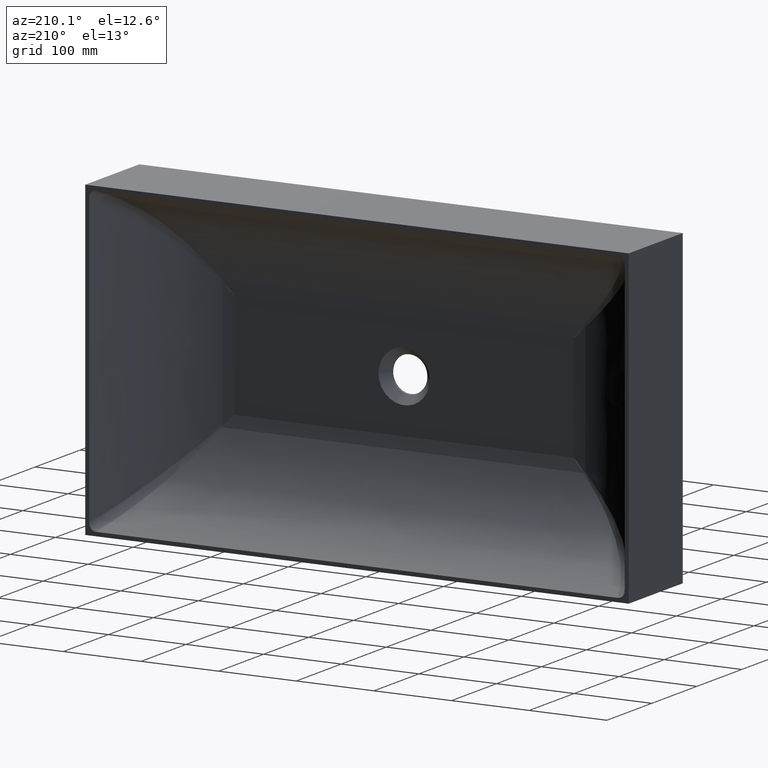
[diagram: clean part render]
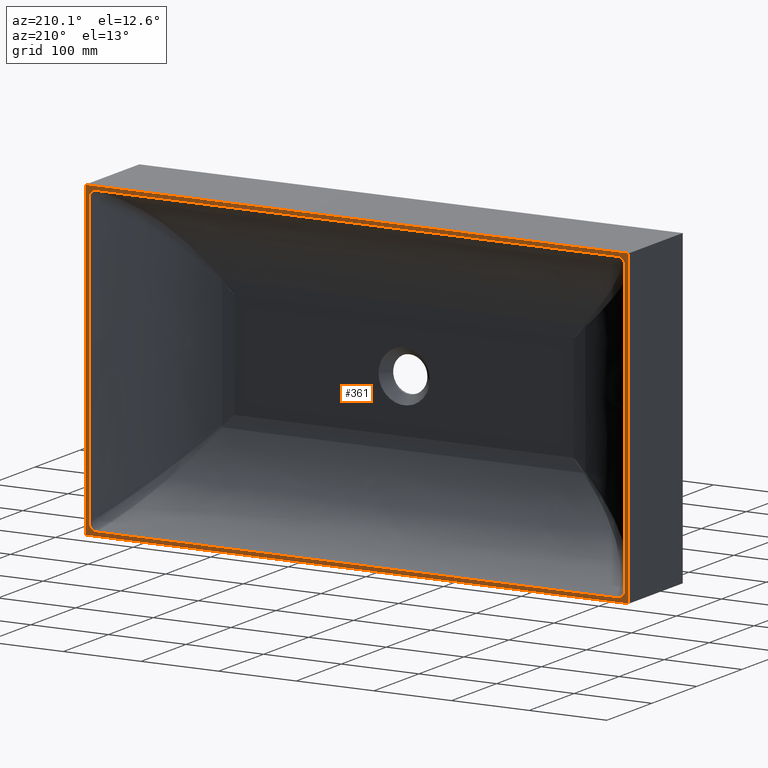
[diagram: same view with one face highlighted and labeled with its STEP entity id]
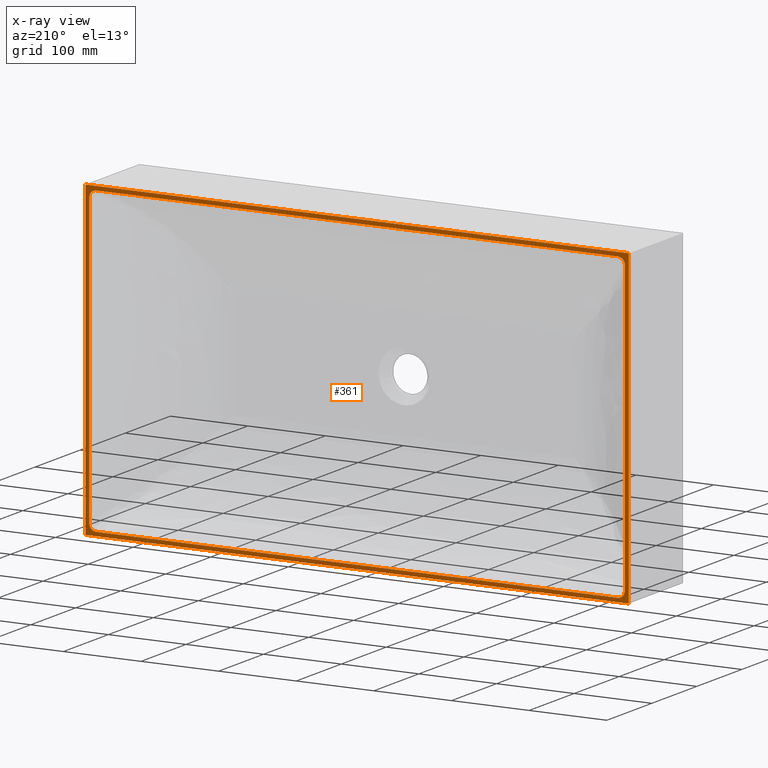
[diagram: x-ray of the same camera — body ghosted, the highlighted face saturated]
A machine part, auxiliary view. The second image highlights one B-rep face of the part: STEP entity #361.
The next image is the same camera in x-ray: the body ghosted, the highlighted face saturated — about 0% of this face is hidden behind the body in this view.
In plain terms, the highlighted planar face has unit normal (0, 1, 0).
Its self-contained STEP definition (entity closure, byte-faithful):
#1 = CARTESIAN_POINT ( 'NONE',  ( -344.5395764374862900, 119.9999999999992800, 188.6496034135135200 ) ) ;
#10 = CARTESIAN_POINT ( 'NONE',  ( 343.8305096038049000, 119.9999999999992300, 190.3507536799460500 ) ) ;
#32 = ORIENTED_EDGE ( 'NONE', *, *, #2656, .T. ) ;
#33 = CARTESIAN_POINT ( 'NONE',  ( -342.7596473688959100, 119.9999999999992800, -191.8703264448121200 ) ) ;
#53 = CARTESIAN_POINT ( 'NONE',  ( 335.5790577006914100, 119.9922663913401900, 194.9671193596227600 ) ) ;
#62 = CARTESIAN_POINT ( 'NONE',  ( 344.9671193020282700, 119.9922664137188900, -185.5790577006093300 ) ) ;
#73 = VERTEX_POINT ( 'NONE', #1940 ) ;
#81 = CARTESIAN_POINT ( 'NONE',  ( 335.5790577006914100, 119.9922663913401900, 194.9671193596227600 ) ) ;
#111 = CARTESIAN_POINT ( 'NONE',  ( 0.0000000000000000000, 119.9999999999992200, 194.9470410668077100 ) ) ;
#128 = CARTESIAN_POINT ( 'NONE',  ( -338.0341791756490600, 119.9999999999992800, 194.7123349679627900 ) ) ;
#136 = CARTESIAN_POINT ( 'NONE',  ( 0.0000000000000000000, 119.9999999999992200, -194.9470410668095000 ) ) ;
#154 = CARTESIAN_POINT ( 'NONE',  ( 344.9834004611630000, 119.9999999999991800, 186.2025042077122000 ) ) ;
#162 = CARTESIAN_POINT ( 'NONE',  ( 343.1469752501623100, 119.9999999999992300, -191.4138618519664600 ) ) ;
#167 = CARTESIAN_POINT ( 'NONE',  ( 344.9671193596302000, 119.9922663913387000, 185.5790577006874900 ) ) ;
#222 = CARTESIAN_POINT ( 'NONE',  ( -344.9834015516176500, 119.9999999999992000, 186.2034410130632700 ) ) ;
#238 = ORIENTED_EDGE ( 'NONE', *, *, #1511, .T. ) ;
#246 = CARTESIAN_POINT ( 'NONE',  ( 350.0000000000014200, 119.9999999999992200, 199.9999999999992900 ) ) ;
#292 = CARTESIAN_POINT ( 'NONE',  ( 340.6302678640722100, 119.9999999999992600, 193.6523266788829000 ) ) ;
#307 = CARTESIAN_POINT ( 'NONE',  ( -343.8305096037987600, 119.9999999999992300, -190.3507536799509700 ) ) ;
#309 = B_SPLINE_CURVE_WITH_KNOTS ( 'NONE', 3,
 ( #1616, #2623, #2485, #1000, #2287, #1266, #1016, #1897, #2590, #1705, #307, #2997, #561, #33, #989, #2207, #2572, #2866, #3325, #733, #2003, #1090, #663, #3234, #2011, #653, #2790, #793, #1961, #1119 ),
 .UNSPECIFIED., .F., .F.,
 ( 4, 2, 2, 2, 2, 2, 2, 2, 2, 2, 2, 2, 2, 2, 4 ),
 ( 5.329070518200751400E-015, 0.0009257488335347082700, 0.001851497667064087500, 0.002777246500593467000, 0.003702995334122845900, 0.005554493001181604900, 0.006480241834710974300, 0.007405990668240343600, 0.009257488335299142100, 0.01018323716882860900, 0.01110898600235807700, 0.01203473483588754500, 0.01296048366941701300, 0.01388623250294648100, 0.01481198133647595000 ),
 .UNSPECIFIED. ) ;
#310 = CARTESIAN_POINT ( 'NONE',  ( 338.0341791756457600, 119.9999999999992900, -194.7123349679658900 ) ) ;
#315 = CARTESIAN_POINT ( 'NONE',  ( -339.8004443079717600, 119.9999999999992300, 194.1085729462955400 ) ) ;
#330 = CARTESIAN_POINT ( 'NONE',  ( 344.9309921341780400, 119.9999999999991800, 186.8191311858080900 ) ) ;
#335 = CARTESIAN_POINT ( 'NONE',  ( -349.9999999999996600, 119.9999999999992600, -1.776356839400250500E-012 ) ) ;
#352 = DIRECTION ( 'NONE',  ( 1.000000000000000000, 0.0000000000000000000, 0.0000000000000000000 ) ) ;
#361 = ADVANCED_FACE ( 'NONE', ( #886, #1820 ), #551, .T. ) ;
#415 = CARTESIAN_POINT ( 'NONE',  ( 344.9671193020282700, 119.9922664137188900, -185.5790577006093300 ) ) ;
#416 = DIRECTION ( 'NONE',  ( -1.000000000000000000, -0.0000000000000000000, -0.0000000000000000000 ) ) ;
#425 = CARTESIAN_POINT ( 'NONE',  ( 344.1085731110769600, 119.9999999999992000, 189.8004443946797200 ) ) ;
#429 = CARTESIAN_POINT ( 'NONE',  ( -342.1036593084978700, 119.9999999999992600, 192.5510173435631900 ) ) ;
#445 = ORIENTED_EDGE ( 'NONE', *, *, #999, .T. ) ;
#454 = CARTESIAN_POINT ( 'NONE',  ( 339.8028767345654700, 119.9999999999992600, 194.0906595401324900 ) ) ;
#513 = CARTESIAN_POINT ( 'NONE',  ( 338.9306997537482300, 119.9999999999991900, -194.4458846512910100 ) ) ;
#545 = LINE ( 'NONE', #111, #2825 ) ;
#551 = PLANE ( 'NONE',  #2451 ) ;
#561 = CARTESIAN_POINT ( 'NONE',  ( -343.1503344193399700, 119.9999999999992800, -191.3825243158179600 ) ) ;
#609 = VERTEX_POINT ( 'NONE', #833 ) ;
#613 = CARTESIAN_POINT ( 'NONE',  ( -344.7785770082405700, 119.9999999999992200, 187.7457426459597800 ) ) ;
#614 = VECTOR ( 'NONE', #352, 1000.000000000000000 ) ;
#615 = CARTESIAN_POINT ( 'NONE',  ( 339.5199562967101800, 119.9999999999993000, 194.2169340502024400 ) ) ;
#630 = LINE ( 'NONE', #136, #1184 ) ;
#638 = ORIENTED_EDGE ( 'NONE', *, *, #1902, .T. ) ;
#640 = CARTESIAN_POINT ( 'NONE',  ( -349.9999999999996600, 119.9999999999992200, -200.0000000000010800 ) ) ;
#650 = CARTESIAN_POINT ( 'NONE',  ( 350.0000000000014200, 119.9999999999991900, -200.0000000000010800 ) ) ;
#653 = CARTESIAN_POINT ( 'NONE',  ( -337.1318410429192300, 119.9999999999992800, -194.8896986100221200 ) ) ;
#663 = CARTESIAN_POINT ( 'NONE',  ( -338.6496034770243600, 119.9999999999992200, -194.5395765993984000 ) ) ;
#678 = VECTOR ( 'NONE', #1974, 1000.000000000000000 ) ;
#699 = CARTESIAN_POINT ( 'NONE',  ( 350.0000000000014200, 119.9999999999991900, -1.776356839400250500E-012 ) ) ;
#703 = CARTESIAN_POINT ( 'NONE',  ( -344.9305502743940200, 119.9999999999992300, 186.8233689892464600 ) ) ;
#723 = CARTESIAN_POINT ( 'NONE',  ( 343.3307884736333900, 119.9999999999992600, 191.1303594508670800 ) ) ;
#733 = CARTESIAN_POINT ( 'NONE',  ( -339.8028767345593300, 119.9999999999992800, -194.0906595401377200 ) ) ;
#738 = ORIENTED_EDGE ( 'NONE', *, *, #1217, .T. ) ;
#746 = LINE ( 'NONE', #1460, #614 ) ;
#751 = VECTOR ( 'NONE', #2599, 1000.000000000000000 ) ;
#765 = CARTESIAN_POINT ( 'NONE',  ( 338.0514613429174300, 119.9999999999992000, 194.7080779215379200 ) ) ;
#766 = CARTESIAN_POINT ( 'NONE',  ( -338.9306997537505000, 119.9999999999992000, 194.4458846512875100 ) ) ;
#774 = CARTESIAN_POINT ( 'NONE',  ( 337.7326964672171200, 119.9999999999992300, -194.7812514960923500 ) ) ;
#781 = VECTOR ( 'NONE', #1635, 1000.000000000000000 ) ;
#782 = CARTESIAN_POINT ( 'NONE',  ( -338.6324253320872200, 119.9999999999992900, 194.5449927031057500 ) ) ;
#785 = DIRECTION ( 'NONE',  ( 0.0000000000000000000, -1.836970198721029700E-016, -1.000000000000000000 ) ) ;
#793 = CARTESIAN_POINT ( 'NONE',  ( -336.2034410251405300, 119.9999999999993200, -194.9834016919720600 ) ) ;
#800 = CARTESIAN_POINT ( 'NONE',  ( 343.8088019173010800, 119.9999999999993000, -190.3574536715952100 ) ) ;
#814 = CARTESIAN_POINT ( 'NONE',  ( -342.7608294828094100, 119.9999999999993000, 191.8949066192155900 ) ) ;
#815 = LINE ( 'NONE', #699, #2131 ) ;
#820 = CARTESIAN_POINT ( 'NONE',  ( 336.2025041959358900, 119.9999999999992500, -194.9834003208212900 ) ) ;
#825 = CARTESIAN_POINT ( 'NONE',  ( 343.6523265195122600, 119.9999999999992500, -190.6302677561381000 ) ) ;
#833 = CARTESIAN_POINT ( 'NONE',  ( -349.9999999999996600, 119.9999999999992500, 199.9999999999992900 ) ) ;
#852 = CARTESIAN_POINT ( 'NONE',  ( 341.4138619760110500, 119.9999999999992900, 193.1469754037655900 ) ) ;
#855 = CARTESIAN_POINT ( 'NONE',  ( 338.6496034770298700, 119.9999999999992000, 194.5395765993933100 ) ) ;
#886 = FACE_OUTER_BOUND ( 'NONE', #2244, .T. ) ;
#909 = CARTESIAN_POINT ( 'NONE',  ( 344.7785770082423400, 119.9999999999991900, -187.7457426459714300 ) ) ;
#920 = CARTESIAN_POINT ( 'NONE',  ( 336.8233690138111500, 119.9999999999992800, 194.9305504224677700 ) ) ;
#921 = CARTESIAN_POINT ( 'NONE',  ( -335.8915636305991400, 119.9999999999991600, 194.9931775246315100 ) ) ;
#950 = CARTESIAN_POINT ( 'NONE',  ( 344.5449928658162000, 119.9999999999992500, 188.6324253924279900 ) ) ;
#967 = CARTESIAN_POINT ( 'NONE',  ( 337.7457426899624100, 119.9999999999991800, 194.7785771650070500 ) ) ;
#970 = CARTESIAN_POINT ( 'NONE',  ( -344.2169338868354800, 119.9999999999992300, 189.5199562138909600 ) ) ;
#989 = CARTESIAN_POINT ( 'NONE',  ( -342.5510174907634600, 119.9999999999992300, -192.1036594421856600 ) ) ;
#999 = EDGE_CURVE ( 'NONE', #3251, #2807, #2256, .T. ) ;
#1000 = CARTESIAN_POINT ( 'NONE',  ( -344.9309921341729300, 119.9999999999992600, -186.8191311858133800 ) ) ;
#1011 = DIRECTION ( 'NONE',  ( -1.000000000000000000, -0.0000000000000000000, -0.0000000000000000000 ) ) ;
#1016 = CARTESIAN_POINT ( 'NONE',  ( -344.7123351272535400, 119.9999999999992600, -188.0341792236825700 ) ) ;
#1045 = CARTESIAN_POINT ( 'NONE',  ( 344.9834015516207700, 119.9999999999992900, -186.2034410130752100 ) ) ;
#1052 = CARTESIAN_POINT ( 'NONE',  ( 336.2034410251453700, 119.9999999999993200, 194.9834016919664900 ) ) ;
#1066 = B_SPLINE_CURVE_WITH_KNOTS ( 'NONE', 3,
 ( #1083, #921, #1828, #1638, #2716, #1673, #128, #782, #766, #315, #1508, #1487, #2392, #2604, #429, #814, #1873, #2360, #2954, #2802, #970, #3117, #1, #2584, #613, #2306, #703, #222, #1368, #2661 ),
 .UNSPECIFIED., .F., .F.,
 ( 4, 2, 2, 2, 2, 2, 2, 2, 2, 2, 2, 2, 2, 2, 4 ),
 ( 0.0000000000000000000, 0.0009257488170315281500, 0.001851497634063056300, 0.002777246451094584100, 0.003702995268126112600, 0.005554492902189168300, 0.006480241719220674600, 0.007405990536252180100, 0.009257488170315134700, 0.01018323698734668900, 0.01110898580437824500, 0.01203473462140980000, 0.01296048343844135800, 0.01388623225547291400, 0.01481198107250447000 ),
 .UNSPECIFIED. ) ;
#1083 = CARTESIAN_POINT ( 'NONE',  ( -335.5790577006025600, 119.9922664137191500, 194.9671193020243700 ) ) ;
#1090 = CARTESIAN_POINT ( 'NONE',  ( -338.9433204919683400, 119.9999999999993300, -194.4413947239631600 ) ) ;
#1094 = CARTESIAN_POINT ( 'NONE',  ( 342.7596473689034700, 119.9999999999991900, 191.8703264448059000 ) ) ;
#1114 = CARTESIAN_POINT ( 'NONE',  ( 337.1251727983649300, 119.9999999999992300, -194.8905821182750300 ) ) ;
#1119 = CARTESIAN_POINT ( 'NONE',  ( -335.5790577006843000, 119.9922663913402900, -194.9671193596298600 ) ) ;
#1184 = VECTOR ( 'NONE', #1982, 1000.000000000000000 ) ;
#1190 = CARTESIAN_POINT ( 'NONE',  ( 338.6324253320832400, 119.9999999999992800, -194.5449927031094100 ) ) ;
#1217 = EDGE_CURVE ( 'NONE', #3066, #1743, #2354, .T. ) ;
#1225 = CARTESIAN_POINT ( 'NONE',  ( 341.1303593370971600, 119.9999999999991900, -193.3307883148534400 ) ) ;
#1236 = B_SPLINE_CURVE_WITH_KNOTS ( 'NONE', 3,
 ( #167, #1998, #154, #330, #2229, #1588, #2587, #950, #2048, #425, #10, #723, #1764, #1094, #2411, #2210, #852, #292, #2249, #454, #615, #2069, #855, #765, #967, #2574, #920, #1052, #1245, #81 ),
 .UNSPECIFIED., .F., .F.,
 ( 4, 2, 2, 2, 2, 2, 2, 2, 2, 2, 2, 2, 2, 2, 4 ),
 ( 0.0000000000000000000, 0.0009257488335290810400, 0.001851497667058162100, 0.002777246500587243200, 0.003702995334116324200, 0.005554493001174426600, 0.006480241834703521900, 0.007405990668232618000, 0.009257488335290869200, 0.01018323716881994700, 0.01110898600234902500, 0.01203473483587810300, 0.01296048366940718100, 0.01388623250293625900, 0.01481198133646533700 ),
 .UNSPECIFIED. ) ;
#1245 = CARTESIAN_POINT ( 'NONE',  ( 335.8917551118458400, 119.9999999999992500, 194.9931776697872300 ) ) ;
#1266 = CARTESIAN_POINT ( 'NONE',  ( -344.7812516531184300, 119.9999999999992200, -187.7326965091409600 ) ) ;
#1290 = VERTEX_POINT ( 'NONE', #2756 ) ;
#1315 = VERTEX_POINT ( 'NONE', #1889 ) ;
#1368 = CARTESIAN_POINT ( 'NONE',  ( -344.9931775385826400, 119.9999999999992200, 185.8917551063177900 ) ) ;
#1402 = ORIENTED_EDGE ( 'NONE', *, *, #2722, .T. ) ;
#1412 = EDGE_CURVE ( 'NONE', #2669, #3066, #815, .T. ) ;
#1422 = VERTEX_POINT ( 'NONE', #2002 ) ;
#1423 = CARTESIAN_POINT ( 'NONE',  ( 341.8703263173824800, 119.9999999999992300, -192.7596472169001900 ) ) ;
#1455 = CARTESIAN_POINT ( 'NONE',  ( 335.5790577006061400, 119.9922664137191100, -194.9671193020279200 ) ) ;
#1460 = CARTESIAN_POINT ( 'NONE',  ( 0.0000000000000000000, 119.9999999999992200, 199.9999999999992900 ) ) ;
#1471 = ORIENTED_EDGE ( 'NONE', *, *, #1594, .T. ) ;
#1480 = CARTESIAN_POINT ( 'NONE',  ( 344.9470410668098500, 119.9999999999992200, -1.776356839400250500E-012 ) ) ;
#1487 = CARTESIAN_POINT ( 'NONE',  ( -341.1303593371006900, 119.9999999999992200, 193.3307883148471300 ) ) ;
#1508 = CARTESIAN_POINT ( 'NONE',  ( -340.3507535815896300, 119.9999999999991900, 193.8305094404015600 ) ) ;
#1511 = EDGE_CURVE ( 'NONE', #609, #2669, #746, .T. ) ;
#1542 = DIRECTION ( 'NONE',  ( 0.0000000000000000000, 0.0000000000000000000, 1.000000000000000000 ) ) ;
#1545 = CARTESIAN_POINT ( 'NONE',  ( 340.3507535815866200, 119.9999999999992000, -193.8305094404065300 ) ) ;
#1566 = CARTESIAN_POINT ( 'NONE',  ( -344.9470410668062600, 119.9999999999992200, -1.776356839400250500E-012 ) ) ;
#1580 = B_SPLINE_CURVE_WITH_KNOTS ( 'NONE', 3,
 ( #1455, #2683, #820, #2594, #1114, #774, #310, #1190, #513, #2340, #1545, #1225, #1804, #1423, #1763, #2491, #162, #825, #800, #1731, #1971, #2709, #2707, #2512, #909, #2183, #3129, #1045, #2668, #415 ),
 .UNSPECIFIED., .F., .F.,
 ( 4, 2, 2, 2, 2, 2, 2, 2, 2, 2, 2, 2, 2, 2, 4 ),
 ( 0.0000000000000000000, 0.0009257488170307302900, 0.001851497634061460600, 0.002777246451092191100, 0.003702995268122921200, 0.005554492902184382200, 0.006480241719215204200, 0.007405990536246027100, 0.009257488170307730900, 0.01018323698733853700, 0.01110898580436934500, 0.01203473462140015400, 0.01296048343843096200, 0.01388623225546176800, 0.01481198107249257600 ),
 .UNSPECIFIED. ) ;
#1588 = CARTESIAN_POINT ( 'NONE',  ( 344.7812516531241200, 119.9999999999992500, 187.7326965091354800 ) ) ;
#1594 = EDGE_CURVE ( 'NONE', #2807, #3217, #1236, .T. ) ;
#1608 = EDGE_CURVE ( 'NONE', #1315, #73, #1066, .T. ) ;
#1616 = CARTESIAN_POINT ( 'NONE',  ( -344.9671193596266200, 119.9922663913408200, -185.5790577006874900 ) ) ;
#1635 = DIRECTION ( 'NONE',  ( 0.0000000000000000000, 0.0000000000000000000, 1.000000000000000000 ) ) ;
#1638 = CARTESIAN_POINT ( 'NONE',  ( -336.8191311620603900, 119.9999999999992800, 194.9309919860756400 ) ) ;
#1651 = ORIENTED_EDGE ( 'NONE', *, *, #2359, .T. ) ;
#1673 = CARTESIAN_POINT ( 'NONE',  ( -337.7326964672202500, 119.9999999999992900, 194.7812514960894500 ) ) ;
#1705 = CARTESIAN_POINT ( 'NONE',  ( -344.1085731110708300, 119.9999999999991600, -189.8004443946846300 ) ) ;
#1731 = CARTESIAN_POINT ( 'NONE',  ( 344.0906593771136400, 119.9999999999992900, -189.8028766453577100 ) ) ;
#1733 = ORIENTED_EDGE ( 'NONE', *, *, #1412, .T. ) ;
#1743 = VERTEX_POINT ( 'NONE', #640 ) ;
#1763 = CARTESIAN_POINT ( 'NONE',  ( 342.1036593084955900, 119.9999999999993000, -192.5510173435701200 ) ) ;
#1764 = CARTESIAN_POINT ( 'NONE',  ( 343.1503344193469600, 119.9999999999992200, 191.3825243158123300 ) ) ;
#1804 = CARTESIAN_POINT ( 'NONE',  ( 341.3825241972543300, 119.9999999999992200, -193.1503342625391300 ) ) ;
#1820 = FACE_BOUND ( 'NONE', #2504, .T. ) ;
#1828 = CARTESIAN_POINT ( 'NONE',  ( -336.2025041959379300, 119.9999999999993000, 194.9834003208191600 ) ) ;
#1861 = LINE ( 'NONE', #1566, #678 ) ;
#1873 = CARTESIAN_POINT ( 'NONE',  ( -343.1469752501641900, 119.9999999999992000, 191.4138618519579900 ) ) ;
#1889 = CARTESIAN_POINT ( 'NONE',  ( -335.5790577006025600, 119.9922664137191500, 194.9671193020243700 ) ) ;
#1897 = CARTESIAN_POINT ( 'NONE',  ( -344.5449928658100600, 119.9999999999993000, -188.6324253924340200 ) ) ;
#1902 = EDGE_CURVE ( 'NONE', #2159, #1422, #309, .T. ) ;
#1940 = CARTESIAN_POINT ( 'NONE',  ( -344.9671193020229800, 119.9922664137197600, 185.5790577006040100 ) ) ;
#1961 = CARTESIAN_POINT ( 'NONE',  ( -335.8917551118405500, 119.9999999999992500, -194.9931776697961800 ) ) ;
#1971 = CARTESIAN_POINT ( 'NONE',  ( 344.2169338868354800, 119.9999999999993500, -189.5199562139009400 ) ) ;
#1974 = DIRECTION ( 'NONE',  ( -0.0000000000000000000, -0.0000000000000000000, -1.000000000000000000 ) ) ;
#1982 = DIRECTION ( 'NONE',  ( 1.000000000000000000, 0.0000000000000000000, 0.0000000000000000000 ) ) ;
#1997 = LINE ( 'NONE', #335, #751 ) ;
#1998 = CARTESIAN_POINT ( 'NONE',  ( 344.9931776558362900, 119.9999999999991900, 185.8915636356933900 ) ) ;
#2002 = CARTESIAN_POINT ( 'NONE',  ( -335.5790577006843000, 119.9922663913402900, -194.9671193596298600 ) ) ;
#2003 = CARTESIAN_POINT ( 'NONE',  ( -339.5199562967043200, 119.9999999999993500, -194.2169340502075600 ) ) ;
#2011 = CARTESIAN_POINT ( 'NONE',  ( -337.7457426899570700, 119.9999999999992800, -194.7785771650122800 ) ) ;
#2048 = CARTESIAN_POINT ( 'NONE',  ( 344.4458848150533200, 119.9999999999992300, 188.9306998206497800 ) ) ;
#2069 = CARTESIAN_POINT ( 'NONE',  ( 338.9433204919737900, 119.9999999999992900, 194.4413947239580400 ) ) ;
#2131 = VECTOR ( 'NONE', #785, 1000.000000000000000 ) ;
#2139 = ORIENTED_EDGE ( 'NONE', *, *, #2559, .T. ) ;
#2159 = VERTEX_POINT ( 'NONE', #2483 ) ;
#2160 = CARTESIAN_POINT ( 'NONE',  ( 0.0000000000000000000, 119.9999999999992200, -200.0000000000010800 ) ) ;
#2183 = CARTESIAN_POINT ( 'NONE',  ( 344.8896984586508000, 119.9999999999992000, -187.1318410119876900 ) ) ;
#2207 = CARTESIAN_POINT ( 'NONE',  ( -341.8949067532327600, 119.9999999999992300, -192.7608296302079200 ) ) ;
#2210 = CARTESIAN_POINT ( 'NONE',  ( 341.8949067532390100, 119.9999999999992000, 192.7608296302033200 ) ) ;
#2229 = CARTESIAN_POINT ( 'NONE',  ( 344.8905822697104800, 119.9999999999992600, 187.1251728281429200 ) ) ;
#2244 = EDGE_LOOP ( 'NONE', ( #1402, #238, #1733, #738 ) ) ;
#2249 = CARTESIAN_POINT ( 'NONE',  ( 340.3574537735181000, 119.9999999999992500, 193.8088020782493600 ) ) ;
#2256 = LINE ( 'NONE', #1480, #781 ) ;
#2287 = CARTESIAN_POINT ( 'NONE',  ( -344.8905822697050200, 119.9999999999992000, -187.1251728281482100 ) ) ;
#2306 = CARTESIAN_POINT ( 'NONE',  ( -344.8896984586485800, 119.9999999999992600, 187.1318410119758900 ) ) ;
#2340 = CARTESIAN_POINT ( 'NONE',  ( 339.8004443079691400, 119.9999999999991500, -194.1085729462998000 ) ) ;
#2354 = LINE ( 'NONE', #2160, #2409 ) ;
#2359 = EDGE_CURVE ( 'NONE', #73, #2159, #1861, .T. ) ;
#2360 = CARTESIAN_POINT ( 'NONE',  ( -343.6523265195139600, 119.9999999999992600, 190.6302677561279800 ) ) ;
#2392 = CARTESIAN_POINT ( 'NONE',  ( -341.3825241972582500, 119.9999999999992500, 193.1503342625321400 ) ) ;
#2409 = VECTOR ( 'NONE', #1011, 1000.000000000000000 ) ;
#2411 = CARTESIAN_POINT ( 'NONE',  ( 342.5510174907706200, 119.9999999999991800, 192.1036594421802600 ) ) ;
#2451 = AXIS2_PLACEMENT_3D ( 'NONE', #3079, #3286, #1542 ) ;
#2479 = CARTESIAN_POINT ( 'NONE',  ( 344.9671193596302000, 119.9922663913387000, 185.5790577006874900 ) ) ;
#2483 = CARTESIAN_POINT ( 'NONE',  ( -344.9671193596266200, 119.9922663913408200, -185.5790577006874900 ) ) ;
#2485 = CARTESIAN_POINT ( 'NONE',  ( -344.9834004611579400, 119.9999999999992500, -186.2025042077173100 ) ) ;
#2491 = CARTESIAN_POINT ( 'NONE',  ( 342.7608294828073700, 119.9999999999992900, -191.8949066192232900 ) ) ;
#2504 = EDGE_LOOP ( 'NONE', ( #638, #3038, #32, #445, #1471, #2139, #2528, #1651 ) ) ;
#2512 = CARTESIAN_POINT ( 'NONE',  ( 344.7080777626537200, 119.9999999999992500, -188.0514612923597600 ) ) ;
#2528 = ORIENTED_EDGE ( 'NONE', *, *, #1608, .T. ) ;
#2559 = EDGE_CURVE ( 'NONE', #3217, #1315, #545, .T. ) ;
#2572 = CARTESIAN_POINT ( 'NONE',  ( -341.4138619760051400, 119.9999999999992500, -193.1469754037704300 ) ) ;
#2574 = CARTESIAN_POINT ( 'NONE',  ( 337.1318410429241800, 119.9999999999991800, 194.8896986100167500 ) ) ;
#2584 = CARTESIAN_POINT ( 'NONE',  ( -344.7080777626526400, 119.9999999999992500, 188.0514612923478000 ) ) ;
#2587 = CARTESIAN_POINT ( 'NONE',  ( 344.7123351272592200, 119.9999999999992300, 188.0341792236768300 ) ) ;
#2590 = CARTESIAN_POINT ( 'NONE',  ( -344.4458848150471800, 119.9999999999991500, -188.9306998206550900 ) ) ;
#2594 = CARTESIAN_POINT ( 'NONE',  ( 336.8191311620580600, 119.9999999999992500, -194.9309919860780000 ) ) ;
#2599 = DIRECTION ( 'NONE',  ( -0.0000000000000000000, 1.836970198721029700E-016, 1.000000000000000000 ) ) ;
#2604 = CARTESIAN_POINT ( 'NONE',  ( -341.8703263173867400, 119.9999999999992600, 192.7596472168919500 ) ) ;
#2623 = CARTESIAN_POINT ( 'NONE',  ( -344.9931776558325400, 119.9999999999991800, -185.8915636356933600 ) ) ;
#2656 = EDGE_CURVE ( 'NONE', #1290, #3251, #1580, .T. ) ;
#2661 = CARTESIAN_POINT ( 'NONE',  ( -344.9671193020229800, 119.9922664137197600, 185.5790577006040100 ) ) ;
#2668 = CARTESIAN_POINT ( 'NONE',  ( 344.9931775385890100, 119.9999999999992300, -185.8917551063248700 ) ) ;
#2669 = VERTEX_POINT ( 'NONE', #246 ) ;
#2683 = CARTESIAN_POINT ( 'NONE',  ( 335.8915636305974900, 119.9999999999993000, -194.9931775246333500 ) ) ;
#2707 = CARTESIAN_POINT ( 'NONE',  ( 344.5395764374867400, 119.9999999999992000, -188.6496034135245500 ) ) ;
#2709 = CARTESIAN_POINT ( 'NONE',  ( 344.4413945611469200, 119.9999999999992800, -188.9433204220156000 ) ) ;
#2716 = CARTESIAN_POINT ( 'NONE',  ( -337.1251727983676000, 119.9999999999992800, 194.8905821182726200 ) ) ;
#2722 = EDGE_CURVE ( 'NONE', #1743, #609, #1997, .T. ) ;
#2756 = CARTESIAN_POINT ( 'NONE',  ( 335.5790577006061400, 119.9922664137191100, -194.9671193020279200 ) ) ;
#2790 = CARTESIAN_POINT ( 'NONE',  ( -336.8233690138062000, 119.9999999999993200, -194.9305504224731700 ) ) ;
#2802 = CARTESIAN_POINT ( 'NONE',  ( -344.0906593771140900, 119.9999999999993500, 189.8028766453478800 ) ) ;
#2807 = VERTEX_POINT ( 'NONE', #2479 ) ;
#2825 = VECTOR ( 'NONE', #416, 1000.000000000000000 ) ;
#2866 = CARTESIAN_POINT ( 'NONE',  ( -340.6302678640660100, 119.9999999999992900, -193.6523266788880400 ) ) ;
#2954 = CARTESIAN_POINT ( 'NONE',  ( -343.8088019173018200, 119.9999999999993200, 190.3574536715858900 ) ) ;
#2997 = CARTESIAN_POINT ( 'NONE',  ( -343.3307884736267400, 119.9999999999992300, -191.1303594508724500 ) ) ;
#3038 = ORIENTED_EDGE ( 'NONE', *, *, #3310, .T. ) ;
#3066 = VERTEX_POINT ( 'NONE', #650 ) ;
#3079 = CARTESIAN_POINT ( 'NONE',  ( 0.0000000000000000000, 119.9999999999992200, -1.776356839400250500E-012 ) ) ;
#3117 = CARTESIAN_POINT ( 'NONE',  ( -344.4413945611463500, 119.9999999999992000, 188.9433204220050600 ) ) ;
#3129 = CARTESIAN_POINT ( 'NONE',  ( 344.9305502743964700, 119.9999999999992600, -186.8233689892583400 ) ) ;
#3217 = VERTEX_POINT ( 'NONE', #53 ) ;
#3234 = CARTESIAN_POINT ( 'NONE',  ( -338.0514613429118100, 119.9999999999992000, -194.7080779215431500 ) ) ;
#3251 = VERTEX_POINT ( 'NONE', #62 ) ;
#3286 = DIRECTION ( 'NONE',  ( 0.0000000000000000000, 1.000000000000000000, 0.0000000000000000000 ) ) ;
#3310 = EDGE_CURVE ( 'NONE', #1422, #1290, #630, .T. ) ;
#3325 = CARTESIAN_POINT ( 'NONE',  ( -340.3574537735111700, 119.9999999999992800, -193.8088020782549300 ) ) ;